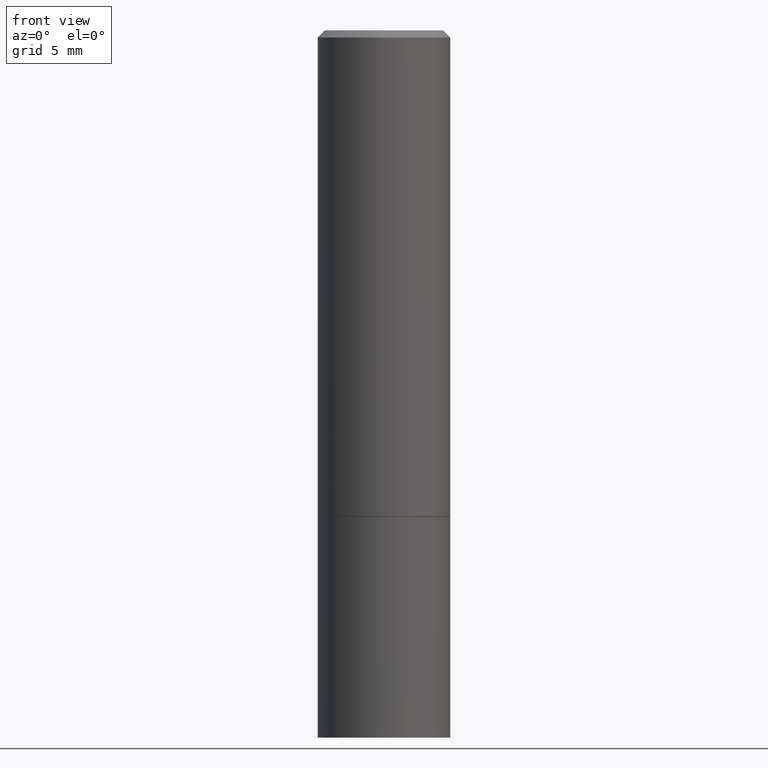
[diagram: clean part render]
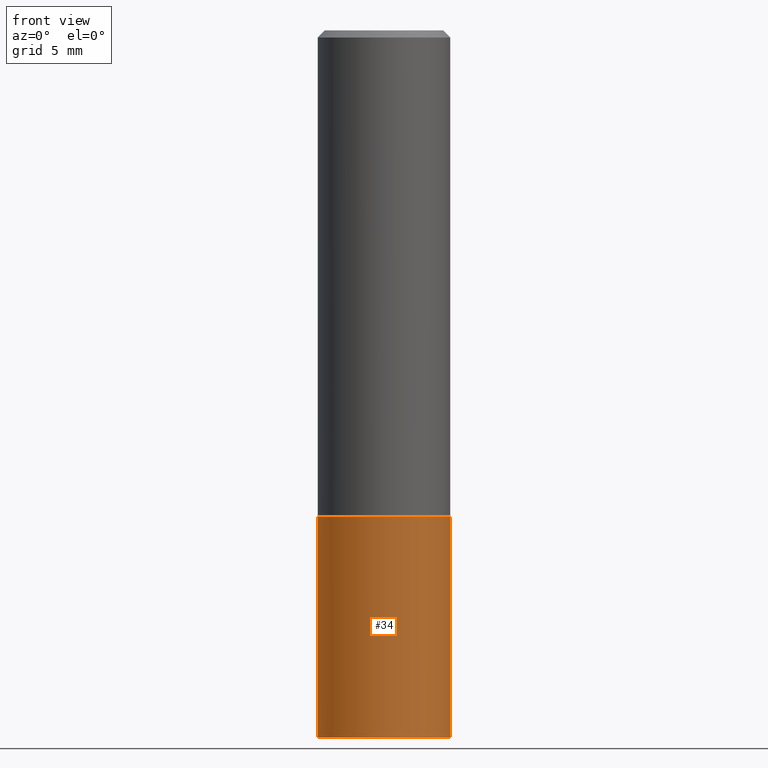
[diagram: same view with one face highlighted and labeled with its STEP entity id]
A machine part, front view. The second image highlights one B-rep face of the part: STEP entity #34.
In plain terms, the highlighted cylindrical surface (partial cylindrical patch) has radius 4.7625 mm, axis along (-0, 0, 1).
Its self-contained STEP definition (entity closure, byte-faithful):
#15 = CARTESIAN_POINT ( 'NONE',  ( -0.1875000000000000278, -4.559607129747620988E-15, -2.000000000000000000 ) ) ;
#16 = EDGE_LOOP ( 'NONE', ( #297, #31, #340, #172 ) ) ;
#18 = DIRECTION ( 'NONE',  ( -2.445468806185136597E-29, 3.491481338843145583E-15, 1.000000000000000000 ) ) ;
#31 = ORIENTED_EDGE ( 'NONE', *, *, #185, .T. ) ;
#34 = ADVANCED_FACE ( 'NONE', ( #194 ), #113, .T. ) ;
#43 = AXIS2_PLACEMENT_3D ( 'NONE', #104, #18, #48 ) ;
#48 = DIRECTION ( 'NONE',  ( 1.000000000000000000, -6.982962677686266711E-15, 0.000000000000000000 ) ) ;
#75 = VECTOR ( 'NONE', #184, 39.37007874015748143 ) ;
#90 = VERTEX_POINT ( 'NONE', #319 ) ;
#96 = LINE ( 'NONE', #343, #117 ) ;
#98 = VERTEX_POINT ( 'NONE', #15 ) ;
#104 = CARTESIAN_POINT ( 'NONE',  ( 3.362519608504562260E-29, -4.800786840909324930E-15, -1.375000000000000000 ) ) ;
#113 = CYLINDRICAL_SURFACE ( 'NONE', #264, 0.1875000000000000278 ) ;
#117 = VECTOR ( 'NONE', #315, 39.37007874015748143 ) ;
#126 = CIRCLE ( 'NONE', #43, 0.1875000000000000278 ) ;
#133 = CARTESIAN_POINT ( 'NONE',  ( -0.1875000000000000278, -4.559607129747620988E-15, -1.375000000000000000 ) ) ;
#172 = ORIENTED_EDGE ( 'NONE', *, *, #355, .F. ) ;
#184 = DIRECTION ( 'NONE',  ( -2.445468806185136877E-29, 3.491481338843145188E-15, 1.000000000000000000 ) ) ;
#185 = EDGE_CURVE ( 'NONE', #98, #223, #248, .T. ) ;
#194 = FACE_OUTER_BOUND ( 'NONE', #16, .T. ) ;
#207 = CARTESIAN_POINT ( 'NONE',  ( -0.1875000000000000278, 1.332267629550188046E-15, -9.223003294227947991E-30 ) ) ;
#212 = CARTESIAN_POINT ( 'NONE',  ( 0.000000000000000000, 0.000000000000000000, 0.000000000000000000 ) ) ;
#217 = DIRECTION ( 'NONE',  ( 1.000000000000000000, -6.982962677686265922E-15, 4.876176775795935793E-29 ) ) ;
#223 = VERTEX_POINT ( 'NONE', #341 ) ;
#237 = DIRECTION ( 'NONE',  ( -2.445468806185136597E-29, 3.491481338843145583E-15, 1.000000000000000000 ) ) ;
#248 = CIRCLE ( 'NONE', #321, 0.1875000000000000278 ) ;
#264 = AXIS2_PLACEMENT_3D ( 'NONE', #212, #237, #217 ) ;
#293 = EDGE_CURVE ( 'NONE', #98, #333, #345, .T. ) ;
#297 = ORIENTED_EDGE ( 'NONE', *, *, #293, .F. ) ;
#302 = DIRECTION ( 'NONE',  ( -2.445468806185136597E-29, 3.491481338843145583E-15, 1.000000000000000000 ) ) ;
#315 = DIRECTION ( 'NONE',  ( -2.445468806185136877E-29, 3.491481338843145188E-15, 1.000000000000000000 ) ) ;
#319 = CARTESIAN_POINT ( 'NONE',  ( 0.1875000000000000278, -6.110092342975500727E-15, -1.375000000000000000 ) ) ;
#321 = AXIS2_PLACEMENT_3D ( 'NONE', #358, #302, #323 ) ;
#323 = DIRECTION ( 'NONE',  ( 1.000000000000000000, -6.982962677686266711E-15, 0.000000000000000000 ) ) ;
#333 = VERTEX_POINT ( 'NONE', #133 ) ;
#340 = ORIENTED_EDGE ( 'NONE', *, *, #342, .T. ) ;
#341 = CARTESIAN_POINT ( 'NONE',  ( 0.1875000000000000278, -8.292268179752466962E-15, -2.000000000000000000 ) ) ;
#342 = EDGE_CURVE ( 'NONE', #223, #90, #96, .T. ) ;
#343 = CARTESIAN_POINT ( 'NONE',  ( 0.1875000000000000278, -1.309305502066175008E-15, 9.142831454617381013E-30 ) ) ;
#345 = LINE ( 'NONE', #207, #75 ) ;
#355 = EDGE_CURVE ( 'NONE', #333, #90, #126, .T. ) ;
#358 = CARTESIAN_POINT ( 'NONE',  ( 4.890937612370273194E-29, -6.982962677686291165E-15, -2.000000000000000000 ) ) ;